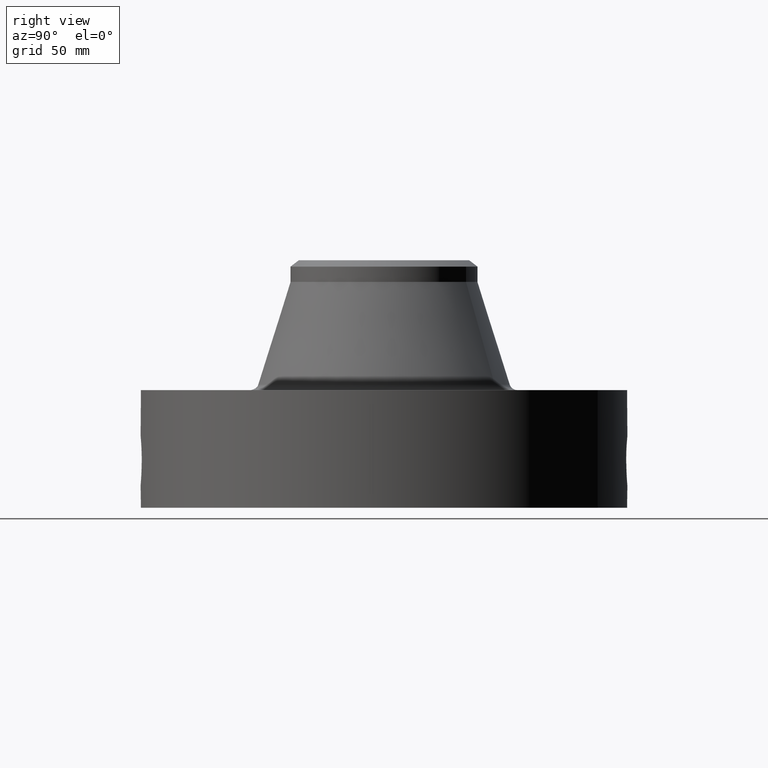
[diagram: clean part render]
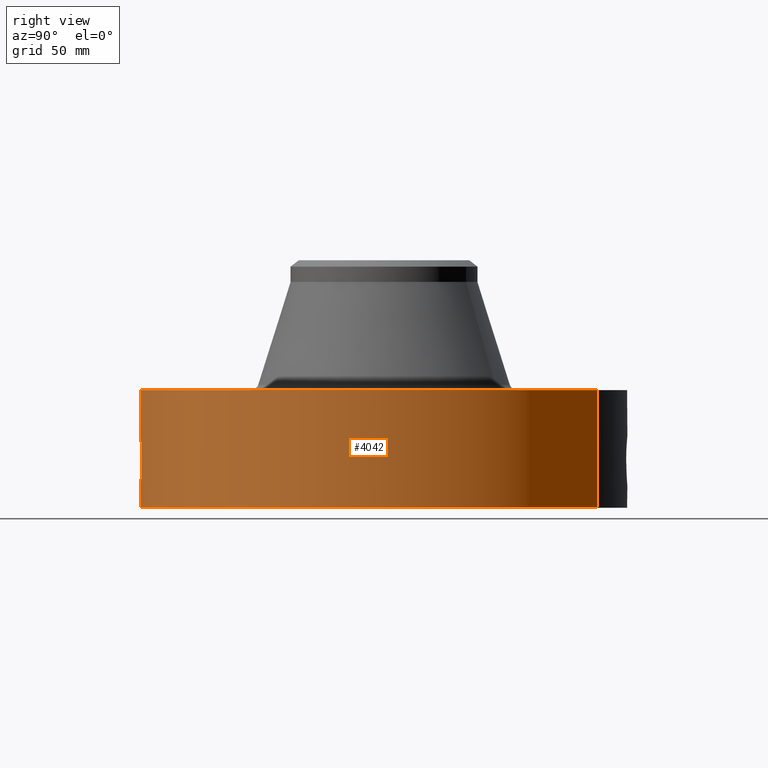
[diagram: same view with one face highlighted and labeled with its STEP entity id]
A machine part, right view. The second image highlights one B-rep face of the part: STEP entity #4042.
In plain terms, the highlighted cylindrical surface (partial cylindrical patch) has radius 95.25 mm, axis along (0, 0, -1).
Its self-contained STEP definition (entity closure, byte-faithful):
#2923=AXIS2_PLACEMENT_3D('Circle Axis2P3D',#2921,#2922,$) ;
#3741=AXIS2_PLACEMENT_3D('Cylinder Axis2P3D',#3738,#3739,#3740) ;
#3902=AXIS2_PLACEMENT_3D('Circle Axis2P3D',#3900,#3901,$) ;
#2921=CARTESIAN_POINT('Axis2P3D Location',(0.,0.,1.81300000001)) ;
#2925=CARTESIAN_POINT('Vertex',(1.79784576977,3.2909346071,1.81300000001)) ;
#2927=CARTESIAN_POINT('Vertex',(-1.79784576977,-3.2909346071,1.81300000001)) ;
#3738=CARTESIAN_POINT('Axis2P3D Location',(0.,0.,1.90650000001)) ;
#3747=CARTESIAN_POINT('Vertex',(-1.79784576977,-3.2909346071,2.79741234551E-016)) ;
#3749=CARTESIAN_POINT('Vertex',(1.79784576977,3.2909346071,2.79741234551E-016)) ;
#3752=CARTESIAN_POINT('Line Origine',(-1.79784576977,-3.2909346071,0.906500000004)) ;
#3757=CARTESIAN_POINT('Line Origine',(1.79784576977,3.2909346071,0.906500000004)) ;
#3900=CARTESIAN_POINT('Axis2P3D Location',(0.,0.,2.79741234551E-016)) ;
#3912=CARTESIAN_POINT('Control Point',(0.0753914484803,-3.74924207402,1.09597625389)) ;
#3913=CARTESIAN_POINT('Control Point',(0.0508871630545,-3.74973481723,1.10133175108)) ;
#3914=CARTESIAN_POINT('Control Point',(0.0258057780754,-3.74999513058,1.10406746841)) ;
#3915=CARTESIAN_POINT('Control Point',(0.000717585090753,-3.74999993136,1.10411849574)) ;
#3916=CARTESIAN_POINT('Vertex',(0.0753914484803,-3.74924207402,1.09597625389)) ;
#3918=CARTESIAN_POINT('Vertex',(0.000717310967062,-3.74999993141,1.10411850567)) ;
#3922=CARTESIAN_POINT('Control Point',(0.0753915468818,-3.74924207204,1.09597675408)) ;
#3923=CARTESIAN_POINT('Control Point',(0.108463494372,-3.74857704556,1.08946785328)) ;
#3924=CARTESIAN_POINT('Control Point',(0.140467955313,-3.74748348919,1.07746468285)) ;
#3925=CARTESIAN_POINT('Control Point',(0.169827393148,-3.7461525138,1.06090097639)) ;
#3926=CARTESIAN_POINT('Vertex',(0.169827393148,-3.7461525138,1.06090097639)) ;
#3930=CARTESIAN_POINT('Control Point',(0.169827393148,-3.7461525138,1.06090097639)) ;
#3931=CARTESIAN_POINT('Control Point',(0.17512060839,-3.74591255215,1.05791470442)) ;
#3932=CARTESIAN_POINT('Control Point',(0.180330514725,-3.74566511604,1.05478116372)) ;
#3933=CARTESIAN_POINT('Control Point',(0.185448302041,-3.74541171667,1.05150863865)) ;
#3934=CARTESIAN_POINT('Vertex',(0.185448591354,-3.74541202801,1.05150908803)) ;
#3938=CARTESIAN_POINT('Control Point',(0.275050018316,-3.73989939538,0.972540865578)) ;
#3939=CARTESIAN_POINT('Control Point',(0.249930223423,-3.74174682476,1.00367935614)) ;
#3940=CARTESIAN_POINT('Control Point',(0.219486847506,-3.74372660005,1.03051568218)) ;
#3941=CARTESIAN_POINT('Control Point',(0.185420913471,-3.74541307267,1.05152614344)) ;
#3942=CARTESIAN_POINT('Vertex',(0.275046818418,-3.73989955739,0.972544901488)) ;
#3946=CARTESIAN_POINT('Control Point',(0.351057032166,-3.73353170072,0.792368846186)) ;
#3947=CARTESIAN_POINT('Control Point',(0.346957550209,-3.73391716737,0.841823319597)) ;
#3948=CARTESIAN_POINT('Control Point',(0.332008426766,-3.73532873399,0.890585278442)) ;
#3949=CARTESIAN_POINT('Control Point',(0.307084434419,-3.73754346064,0.934681400857)) ;
#3950=CARTESIAN_POINT('Control Point',(0.275046669916,-3.73989964163,0.972544812769)) ;
#3951=CARTESIAN_POINT('Vertex',(0.351057107756,-3.73353166619,0.792368875381)) ;
#3955=CARTESIAN_POINT('Control Point',(0.353257162699,-3.73332417252,0.734476423345)) ;
#3956=CARTESIAN_POINT('Control Point',(0.354103526968,-3.73324408726,0.753792010478)) ;
#3957=CARTESIAN_POINT('Control Point',(0.353366705621,-3.73331452665,0.773177218159)) ;
#3958=CARTESIAN_POINT('Control Point',(0.351056675675,-3.73353173424,0.792372065875)) ;
#3959=CARTESIAN_POINT('Vertex',(0.353257379548,-3.73332433084,0.734480457476)) ;
#3963=CARTESIAN_POINT('Control Point',(0.0283068194554,-3.74989316169,0.340995191849)) ;
#3964=CARTESIAN_POINT('Control Point',(0.0810089462031,-3.74949532913,0.347812752637)) ;
#3965=CARTESIAN_POINT('Control Point',(0.132130724807,-3.74818350896,0.364700359281)) ;
#3966=CARTESIAN_POINT('Control Point',(0.178842099599,-3.74609164351,0.390987062673)) ;
#3967=CARTESIAN_POINT('Control Point',(0.26732632996,-3.74093984474,0.463593145967)) ;
#3968=CARTESIAN_POINT('Control Point',(0.323844168304,-3.73612367556,0.560936392622)) ;
#3969=CARTESIAN_POINT('Control Point',(0.34398804236,-3.73420115292,0.61776011813)) ;
#3970=CARTESIAN_POINT('Control Point',(0.353769084707,-3.73327573309,0.676343839087)) ;
#3971=CARTESIAN_POINT('Control Point',(0.353257113344,-3.73332417719,0.73448051433)) ;
#3972=CARTESIAN_POINT('Vertex',(0.0283068194554,-3.74989316169,0.340995191849)) ;
#3976=CARTESIAN_POINT('Control Point',(0.0283068194554,-3.74989316169,0.340995191849)) ;
#3977=CARTESIAN_POINT('Control Point',(0.0188636239709,-3.74996444554,0.340848211278)) ;
#3978=CARTESIAN_POINT('Control Point',(0.00942069526782,-3.75000000687,0.340974759844)) ;
#3979=CARTESIAN_POINT('Control Point',(-2.72878353466E-006,-3.75000000001,0.341374667804)) ;
#3980=CARTESIAN_POINT('Vertex',(-2.72878353348E-006,-3.75000000001,0.341374667804)) ;
#3984=CARTESIAN_POINT('Control Point',(-0.19540052294,-3.74490569117,0.392328168074)) ;
#3985=CARTESIAN_POINT('Control Point',(-0.135001237376,-3.74805718628,0.361408113667)) ;
#3986=CARTESIAN_POINT('Control Point',(-0.0678947510245,-3.74999995061,0.344255844976)) ;
#3987=CARTESIAN_POINT('Control Point',(-2.72878353799E-006,-3.75000000001,0.341374667804)) ;
#3988=CARTESIAN_POINT('Vertex',(-0.19540052294,-3.74490569117,0.392328168074)) ;
#3992=CARTESIAN_POINT('Control Point',(-0.250325966702,-3.74163559296,0.42563645083)) ;
#3993=CARTESIAN_POINT('Control Point',(-0.232840994903,-3.74280538685,0.413204205543)) ;
#3994=CARTESIAN_POINT('Control Point',(-0.214458432803,-3.74391129348,0.402084436267)) ;
#3995=CARTESIAN_POINT('Control Point',(-0.19540052294,-3.74490569117,0.392328168074)) ;
#3996=CARTESIAN_POINT('Vertex',(-0.250325966702,-3.74163559296,0.42563645083)) ;
#4000=CARTESIAN_POINT('Control Point',(-0.250325966702,-3.74163559296,0.42563645083)) ;
#4001=CARTESIAN_POINT('Control Point',(-0.321263590675,-3.73688966598,0.485206475149)) ;
#4002=CARTESIAN_POINT('Control Point',(-0.374298336834,-3.73162836499,0.565201448412)) ;
#4003=CARTESIAN_POINT('Control Point',(-0.404485115256,-3.72804297429,0.655253231916)) ;
#4004=CARTESIAN_POINT('Control Point',(-0.412923094177,-3.72722257133,0.749332507131)) ;
#4005=CARTESIAN_POINT('Control Point',(-0.399088883581,-3.72870326831,0.840949019506)) ;
#4006=CARTESIAN_POINT('Vertex',(-0.399088883581,-3.72870326831,0.840949019506)) ;
#4010=CARTESIAN_POINT('Control Point',(-0.399088883581,-3.72870326831,0.840949019506)) ;
#4011=CARTESIAN_POINT('Control Point',(-0.383959298275,-3.73032261125,0.887210608088)) ;
#4012=CARTESIAN_POINT('Control Point',(-0.360961629614,-3.732706471,0.930534051927)) ;
#4013=CARTESIAN_POINT('Control Point',(-0.331248202745,-3.73556468578,0.969088320009)) ;
#4014=CARTESIAN_POINT('Control Point',(-0.255345217423,-3.74188304665,1.04141240907)) ;
#4015=CARTESIAN_POINT('Control Point',(-0.16206345952,-3.74704179507,1.08552889508)) ;
#4016=CARTESIAN_POINT('Control Point',(-0.108533956601,-3.74903108736,1.10060659785)) ;
#4017=CARTESIAN_POINT('Control Point',(-0.0539091344235,-3.75000037183,1.10679692494)) ;
#4018=CARTESIAN_POINT('Control Point',(2.58579354972E-005,-3.74999999993,1.1041529844)) ;
#4019=CARTESIAN_POINT('Vertex',(2.58579355032E-005,-3.74999999993,1.1041529844)) ;
#4023=CARTESIAN_POINT('Control Point',(0.000717310954271,-3.74999993141,1.10411850565)) ;
#4024=CARTESIAN_POINT('Control Point',(0.00037160707574,-3.74999999754,1.10413603548)) ;
#4025=CARTESIAN_POINT('Control Point',(2.58579444665E-005,-3.74999999993,1.1041529844)) ;
#2922=DIRECTION('Axis2P3D Direction',(0.,0.,-0.0393700787402)) ;
#3739=DIRECTION('Axis2P3D Direction',(0.,0.,-0.0393700787402)) ;
#3740=DIRECTION('Axis2P3D XDirection',(0.0188750212049,0.0345504945626,0.)) ;
#3753=DIRECTION('Vector Direction',(0.,0.,-0.0393700787402)) ;
#3758=DIRECTION('Vector Direction',(0.,0.,-0.0393700787402)) ;
#3901=DIRECTION('Axis2P3D Direction',(0.,0.,-0.0393700787402)) ;
#3754=VECTOR('Line Direction',#3753,0.0393700787402) ;
#3759=VECTOR('Line Direction',#3758,0.0393700787402) ;
#3906=ORIENTED_EDGE('',*,*,#3904,.F.) ;
#3907=ORIENTED_EDGE('',*,*,#3761,.T.) ;
#3908=ORIENTED_EDGE('',*,*,#2929,.T.) ;
#3909=ORIENTED_EDGE('',*,*,#3756,.F.) ;
#4028=ORIENTED_EDGE('',*,*,#3920,.F.) ;
#4029=ORIENTED_EDGE('',*,*,#3928,.T.) ;
#4030=ORIENTED_EDGE('',*,*,#3936,.T.) ;
#4031=ORIENTED_EDGE('',*,*,#3944,.F.) ;
#4032=ORIENTED_EDGE('',*,*,#3953,.F.) ;
#4033=ORIENTED_EDGE('',*,*,#3961,.F.) ;
#4034=ORIENTED_EDGE('',*,*,#3974,.F.) ;
#4035=ORIENTED_EDGE('',*,*,#3982,.T.) ;
#4036=ORIENTED_EDGE('',*,*,#3990,.F.) ;
#4037=ORIENTED_EDGE('',*,*,#3998,.F.) ;
#4038=ORIENTED_EDGE('',*,*,#4008,.T.) ;
#4039=ORIENTED_EDGE('',*,*,#4021,.T.) ;
#4040=ORIENTED_EDGE('',*,*,#4026,.F.) ;
#4041=FACE_BOUND('',#4027,.T.) ;
#4042=ADVANCED_FACE('PartBody',(#3910,#4041),#3742,.T.) ;
#3911=B_SPLINE_CURVE_WITH_KNOTS('',3,(#3912,#3913,#3914,#3915),.UNSPECIFIED.,.F.,.U.,(4,4),(3.73939841918,6.5227132195),.UNSPECIFIED.) ;
#3921=B_SPLINE_CURVE_WITH_KNOTS('',3,(#3922,#3923,#3924,#3925),.UNSPECIFIED.,.F.,.U.,(4,4),(0.00166636412405,3.78896186809),.UNSPECIFIED.) ;
#3929=B_SPLINE_CURVE_WITH_KNOTS('',3,(#3930,#3931,#3932,#3933),.UNSPECIFIED.,.F.,.U.,(4,4),(0.,0.682811794262),.UNSPECIFIED.) ;
#3937=B_SPLINE_CURVE_WITH_KNOTS('',3,(#3938,#3939,#3940,#3941),.UNSPECIFIED.,.F.,.U.,(4,4),(22.7829983327,27.2279570338),.UNSPECIFIED.) ;
#3945=B_SPLINE_CURVE_WITH_KNOTS('',4,(#3946,#3947,#3948,#3949,#3950),.UNSPECIFIED.,.F.,.U.,(5,5),(0.,7.41552565047),.UNSPECIFIED.) ;
#3954=B_SPLINE_CURVE_WITH_KNOTS('',3,(#3955,#3956,#3957,#3958),.UNSPECIFIED.,.F.,.U.,(4,4),(13.301392992,15.4480268159),.UNSPECIFIED.) ;
#3962=B_SPLINE_CURVE_WITH_KNOTS('',5,(#3963,#3964,#3965,#3966,#3967,#3968,#3969,#3970,#3971),.UNSPECIFIED.,.F.,.U.,(6,3,6),(0.,9.23664765782,20.1278596515),.UNSPECIFIED.) ;
#3975=B_SPLINE_CURVE_WITH_KNOTS('',3,(#3976,#3977,#3978,#3979),.UNSPECIFIED.,.F.,.U.,(4,4),(0.,0.98485798547),.UNSPECIFIED.) ;
#3983=B_SPLINE_CURVE_WITH_KNOTS('',3,(#3984,#3985,#3986,#3987),.UNSPECIFIED.,.F.,.U.,(4,4),(0.,7.09551006681),.UNSPECIFIED.) ;
#3991=B_SPLINE_CURVE_WITH_KNOTS('',3,(#3992,#3993,#3994,#3995),.UNSPECIFIED.,.F.,.U.,(4,4),(0.,2.23886078952),.UNSPECIFIED.) ;
#3999=B_SPLINE_CURVE_WITH_KNOTS('',5,(#4000,#4001,#4002,#4003,#4004,#4005),.UNSPECIFIED.,.F.,.U.,(6,6),(0.,16.1083675311),.UNSPECIFIED.) ;
#4009=B_SPLINE_CURVE_WITH_KNOTS('',5,(#4010,#4011,#4012,#4013,#4014,#4015,#4016,#4017,#4018),.UNSPECIFIED.,.F.,.U.,(6,3,6),(0.,8.46807954777,18.5496448128),.UNSPECIFIED.) ;
#4022=B_SPLINE_CURVE_WITH_KNOTS('',2,(#4023,#4024,#4025),.UNSPECIFIED.,.F.,.U.,(3,3),(1.14219294852,1.16804401516),.UNSPECIFIED.) ;
#2924=CIRCLE('generated circle',#2923,3.75000000002) ;
#3903=CIRCLE('generated circle',#3902,3.75000000002) ;
#3742=CYLINDRICAL_SURFACE('generated cylinder',#3741,3.75000000002) ;
#2929=EDGE_CURVE('',#2926,#2928,#2924,.T.) ;
#3756=EDGE_CURVE('',#3748,#2928,#3755,.F.) ;
#3761=EDGE_CURVE('',#3750,#2926,#3760,.F.) ;
#3904=EDGE_CURVE('',#3750,#3748,#3903,.T.) ;
#3920=EDGE_CURVE('',#3917,#3919,#3911,.T.) ;
#3928=EDGE_CURVE('',#3917,#3927,#3921,.T.) ;
#3936=EDGE_CURVE('',#3927,#3935,#3929,.T.) ;
#3944=EDGE_CURVE('',#3943,#3935,#3937,.T.) ;
#3953=EDGE_CURVE('',#3952,#3943,#3945,.T.) ;
#3961=EDGE_CURVE('',#3960,#3952,#3954,.T.) ;
#3974=EDGE_CURVE('',#3973,#3960,#3962,.T.) ;
#3982=EDGE_CURVE('',#3973,#3981,#3975,.T.) ;
#3990=EDGE_CURVE('',#3989,#3981,#3983,.T.) ;
#3998=EDGE_CURVE('',#3997,#3989,#3991,.T.) ;
#4008=EDGE_CURVE('',#3997,#4007,#3999,.T.) ;
#4021=EDGE_CURVE('',#4007,#4020,#4009,.T.) ;
#4026=EDGE_CURVE('',#3919,#4020,#4022,.T.) ;
#3905=EDGE_LOOP('',(#3906,#3907,#3908,#3909)) ;
#4027=EDGE_LOOP('',(#4028,#4029,#4030,#4031,#4032,#4033,#4034,#4035,#4036,#4037,#4038,#4039,#4040)) ;
#3910=FACE_OUTER_BOUND('',#3905,.T.) ;
#3755=LINE('Line',#3752,#3754) ;
#3760=LINE('Line',#3757,#3759) ;
#2926=VERTEX_POINT('',#2925) ;
#2928=VERTEX_POINT('',#2927) ;
#3748=VERTEX_POINT('',#3747) ;
#3750=VERTEX_POINT('',#3749) ;
#3917=VERTEX_POINT('',#3916) ;
#3919=VERTEX_POINT('',#3918) ;
#3927=VERTEX_POINT('',#3926) ;
#3935=VERTEX_POINT('',#3934) ;
#3943=VERTEX_POINT('',#3942) ;
#3952=VERTEX_POINT('',#3951) ;
#3960=VERTEX_POINT('',#3959) ;
#3973=VERTEX_POINT('',#3972) ;
#3981=VERTEX_POINT('',#3980) ;
#3989=VERTEX_POINT('',#3988) ;
#3997=VERTEX_POINT('',#3996) ;
#4007=VERTEX_POINT('',#4006) ;
#4020=VERTEX_POINT('',#4019) ;